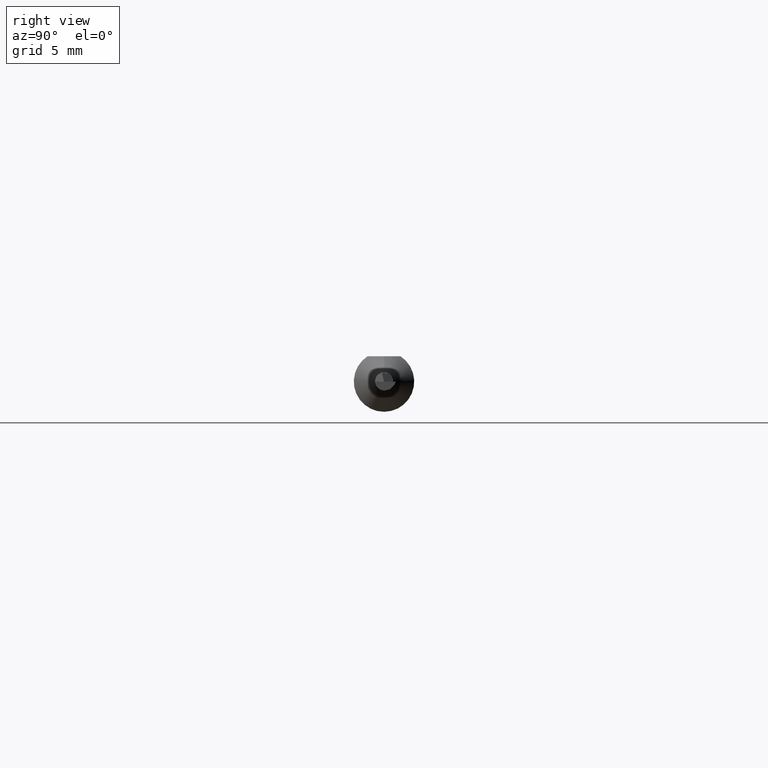
[diagram: clean part render]
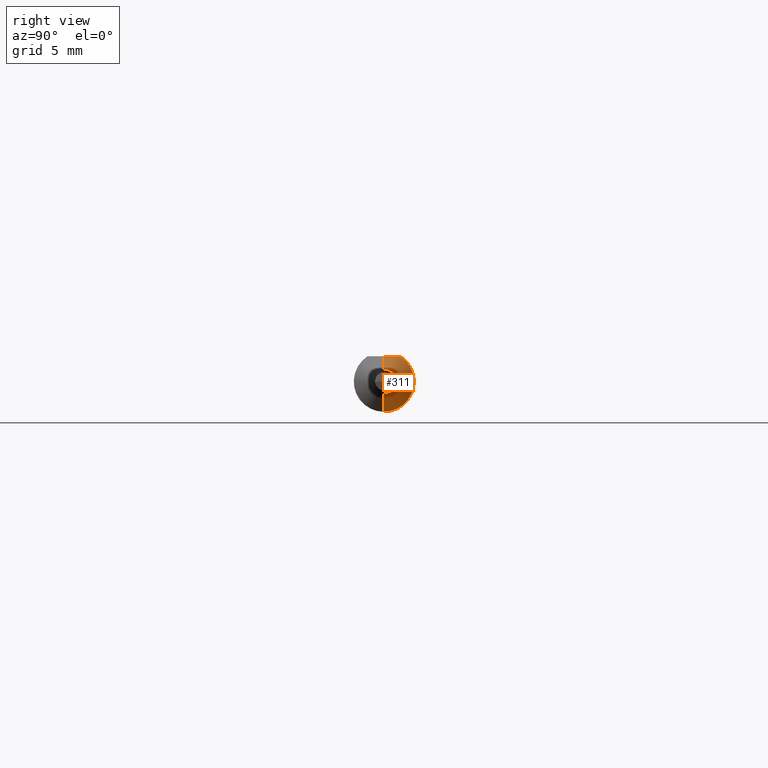
[diagram: same view with one face highlighted and labeled with its STEP entity id]
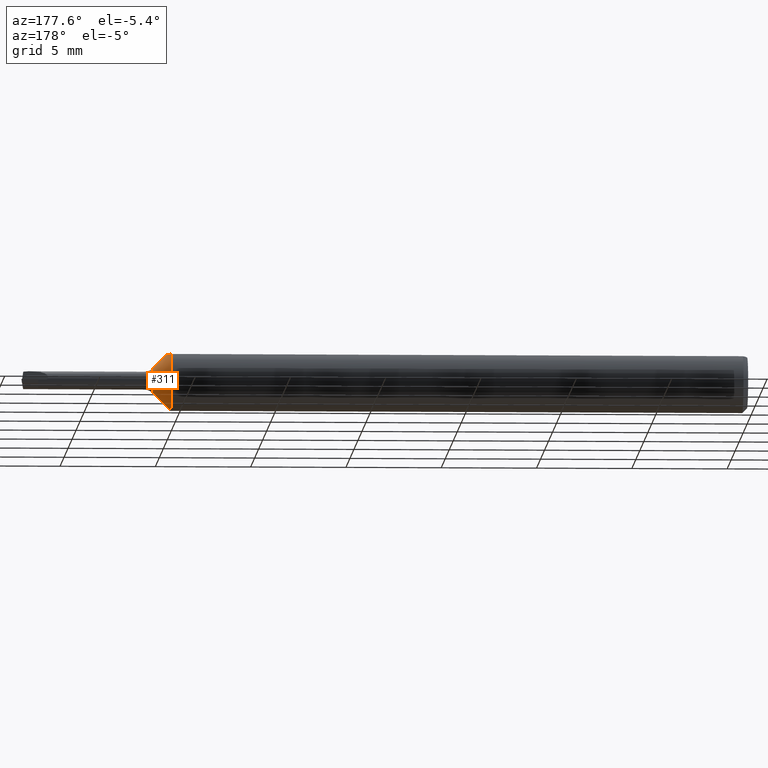
[diagram: same view with one face highlighted and labeled with its STEP entity id]
A machine part, right view. The second image highlights one B-rep face of the part: STEP entity #311.
A second angle (auxiliary view) of the same face is appended — the face is thin or edge-on in the first view.
In plain terms, the highlighted conical surface has half-angle 45 deg.
Its self-contained STEP definition (entity closure, byte-faithful):
#8 = DIRECTION ( 'NONE',  ( -1.000000000000000000, -0.000000000000000000, -0.000000000000000000 ) ) ;
#14 = FACE_OUTER_BOUND ( 'NONE', #380, .T. ) ;
#29 = CARTESIAN_POINT ( 'NONE',  ( 1.227677669529663618, 3.162323435702253921E-18, -0.02582233047033631948 ) ) ;
#36 = AXIS2_PLACEMENT_3D ( 'NONE', #128, #83, #337 ) ;
#59 = CARTESIAN_POINT ( 'NONE',  ( 1.196488788636946854, 0.02320328458619745973, 0.05235000000000002152 ) ) ;
#67 = DIRECTION ( 'NONE',  ( 0.000000000000000000, 0.000000000000000000, 1.000000000000000000 ) ) ;
#81 = VECTOR ( 'NONE', #145, 39.37007874015748143 ) ;
#83 = DIRECTION ( 'NONE',  ( -1.000000000000000000, -0.000000000000000000, -0.000000000000000000 ) ) ;
#86 = EDGE_CURVE ( 'NONE', #549, #319, #590, .T. ) ;
#103 = ORIENTED_EDGE ( 'NONE', *, *, #222, .T. ) ;
#112 = DIRECTION ( 'NONE',  ( -1.000000000000000000, -0.000000000000000000, -0.000000000000000000 ) ) ;
#116 = DIRECTION ( 'NONE',  ( -0.7071067811865451302, 8.659560562354962440E-17, -0.7071067811865499042 ) ) ;
#127 = CARTESIAN_POINT ( 'NONE',  ( 1.227677669529663618, 0.000000000000000000, 0.02582233047033631948 ) ) ;
#128 = CARTESIAN_POINT ( 'NONE',  ( 1.191150000000000153, 0.000000000000000000, 0.000000000000000000 ) ) ;
#145 = DIRECTION ( 'NONE',  ( -0.7071067811865451302, 0.000000000000000000, 0.7071067811865499042 ) ) ;
#160 = CARTESIAN_POINT ( 'NONE',  ( 1.201150000000000162, -1.477726050556335798E-21, 0.05235000000000001458 ) ) ;
#165 = CARTESIAN_POINT ( 'NONE',  ( 1.191150000000000153, 0.03386738844375220686, 0.05235000000000000070 ) ) ;
#204 = EDGE_CURVE ( 'NONE', #476, #634, #310, .T. ) ;
#222 = EDGE_CURVE ( 'NONE', #549, #476, #583, .T. ) ;
#242 = AXIS2_PLACEMENT_3D ( 'NONE', #561, #112, #67 ) ;
#262 = CARTESIAN_POINT ( 'NONE',  ( 1.201150000000000162, 0.005920815533601037767, 0.05235000000000002152 ) ) ;
#267 = CARTESIAN_POINT ( 'NONE',  ( 1.201150000000000162, -1.477726050556335798E-21, 0.05235000000000001458 ) ) ;
#269 = EDGE_CURVE ( 'NONE', #352, #319, #509, .T. ) ;
#290 = ORIENTED_EDGE ( 'NONE', *, *, #86, .F. ) ;
#310 = LINE ( 'NONE', #603, #504 ) ;
#311 = ADVANCED_FACE ( 'NONE', ( #14 ), #439, .T. ) ;
#315 = CARTESIAN_POINT ( 'NONE',  ( 1.193992034642578748, 0.02863519109676619309, 0.05235000000000002152 ) ) ;
#319 = VERTEX_POINT ( 'NONE', #267 ) ;
#325 = CIRCLE ( 'NONE', #36, 0.06235000000000000264 ) ;
#326 = ORIENTED_EDGE ( 'NONE', *, *, #204, .T. ) ;
#337 = DIRECTION ( 'NONE',  ( 0.000000000000000000, 0.000000000000000000, 1.000000000000000000 ) ) ;
#343 = AXIS2_PLACEMENT_3D ( 'NONE', #403, #8, #406 ) ;
#352 = VERTEX_POINT ( 'NONE', #420 ) ;
#380 = EDGE_LOOP ( 'NONE', ( #103, #326, #587, #535, #290 ) ) ;
#386 = CARTESIAN_POINT ( 'NONE',  ( 1.191150000000000153, 7.635672792683746671E-18, -0.06235000000000000264 ) ) ;
#403 = CARTESIAN_POINT ( 'NONE',  ( 1.227677669529663618, 0.000000000000000000, 0.000000000000000000 ) ) ;
#405 = EDGE_CURVE ( 'NONE', #352, #634, #325, .T. ) ;
#406 = DIRECTION ( 'NONE',  ( 0.000000000000000000, 0.000000000000000000, 1.000000000000000000 ) ) ;
#409 = CARTESIAN_POINT ( 'NONE',  ( 1.200078615661968717, 0.01191463382135337506, 0.05235000000000001458 ) ) ;
#420 = CARTESIAN_POINT ( 'NONE',  ( 1.191150000000000153, 0.03386738844375220686, 0.05235000000000000070 ) ) ;
#439 = CONICAL_SURFACE ( 'NONE', #242, 0.02582233047033630560, 0.7853981633974517207 ) ;
#476 = VERTEX_POINT ( 'NONE', #29 ) ;
#504 = VECTOR ( 'NONE', #116, 39.37007874015748143 ) ;
#509 = B_SPLINE_CURVE_WITH_KNOTS ( 'NONE', 3,
 ( #165, #315, #59, #409, #262, #160 ),
 .UNSPECIFIED., .F., .F.,
 ( 4, 2, 4 ),
 ( 0.002018861167849305468, 0.002467762199066085745, 0.002916663230282865588 ),
 .UNSPECIFIED. ) ;
#535 = ORIENTED_EDGE ( 'NONE', *, *, #269, .T. ) ;
#544 = CARTESIAN_POINT ( 'NONE',  ( 1.227677669529663618, 0.000000000000000000, 0.02582233047033630560 ) ) ;
#549 = VERTEX_POINT ( 'NONE', #127 ) ;
#561 = CARTESIAN_POINT ( 'NONE',  ( 1.227677669529663618, 0.000000000000000000, 0.000000000000000000 ) ) ;
#583 = CIRCLE ( 'NONE', #343, 0.02582233047033630560 ) ;
#587 = ORIENTED_EDGE ( 'NONE', *, *, #405, .F. ) ;
#590 = LINE ( 'NONE', #544, #81 ) ;
#603 = CARTESIAN_POINT ( 'NONE',  ( 1.227677669529663618, 3.162323435702252765E-18, -0.02582233047033630560 ) ) ;
#634 = VERTEX_POINT ( 'NONE', #386 ) ;